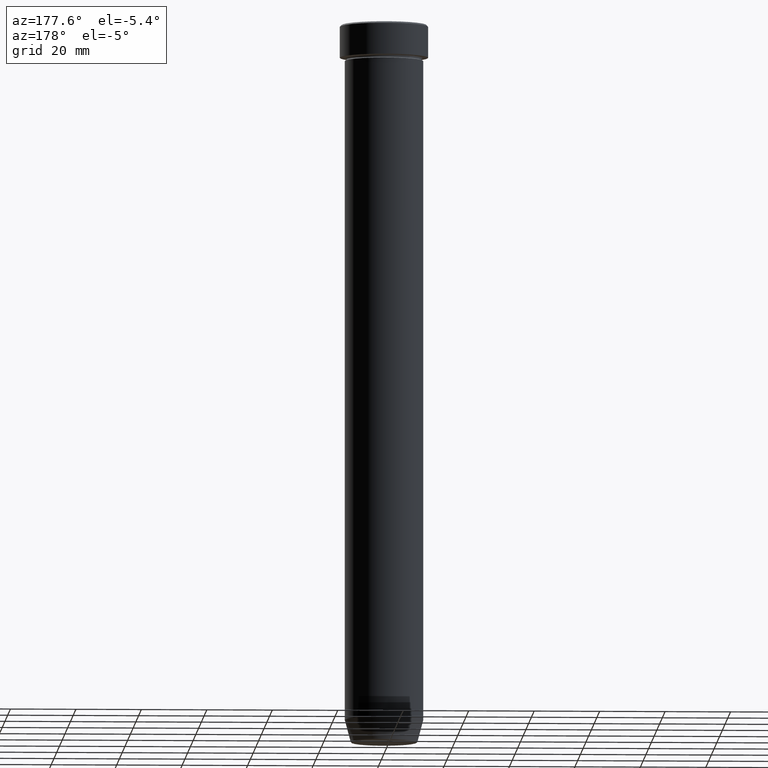
[diagram: clean part render]
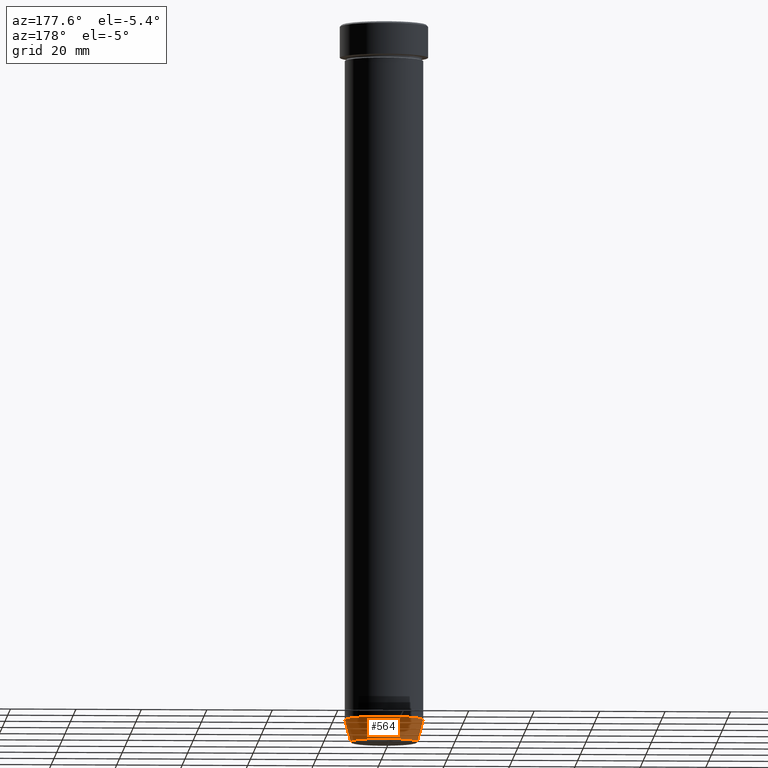
[diagram: same view with one face highlighted and labeled with its STEP entity id]
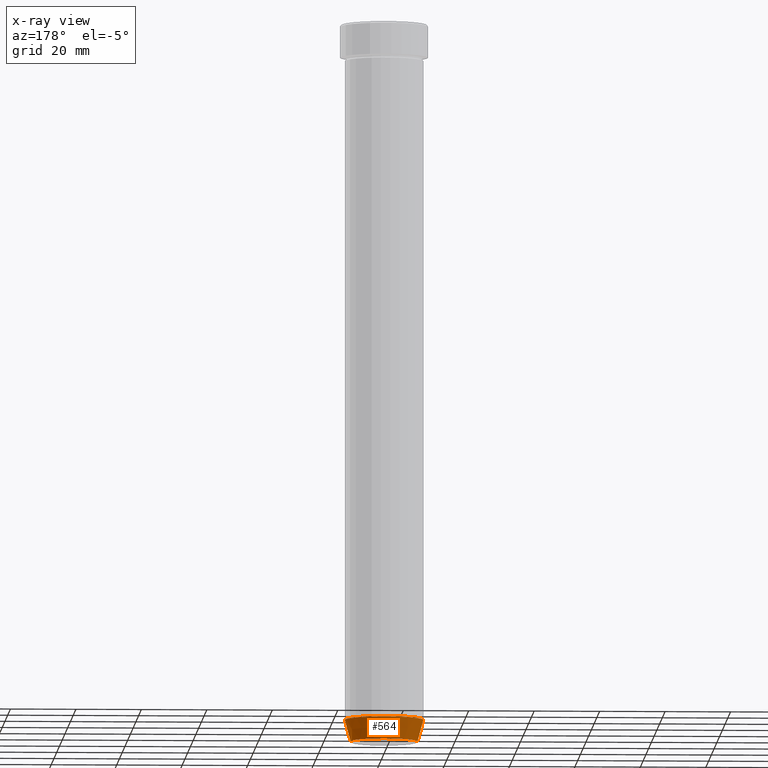
[diagram: x-ray of the same camera — body ghosted, the highlighted face saturated]
A machine part, auxiliary view. The second image highlights one B-rep face of the part: STEP entity #564.
The next image is the same camera in x-ray: the body ghosted, the highlighted face saturated — about 0% of this face is hidden behind the body in this view.
In plain terms, the highlighted conical surface has half-angle 15 deg.
Its self-contained STEP definition (entity closure, byte-faithful):
#10 = DIRECTION ( 'NONE',  ( -1.000000000000000000, 0.000000000000000000, 0.000000000000000000 ) ) ;
#21 = CONICAL_SURFACE ( 'NONE', #98, 10.12435565298213369, 0.2617993877991502405 ) ;
#25 = DIRECTION ( 'NONE',  ( 0.2588190451025214611, 0.000000000000000000, 0.9659258262890679791 ) ) ;
#27 = ORIENTED_EDGE ( 'NONE', *, *, #433, .T. ) ;
#34 = VERTEX_POINT ( 'NONE', #163 ) ;
#41 = ORIENTED_EDGE ( 'NONE', *, *, #459, .F. ) ;
#43 = EDGE_CURVE ( 'NONE', #499, #34, #130, .T. ) ;
#63 = CARTESIAN_POINT ( 'NONE',  ( -10.12435565298213369, 1.239875974385398152E-15, -220.0000000000000284 ) ) ;
#95 = AXIS2_PLACEMENT_3D ( 'NONE', #152, #147, #10 ) ;
#98 = AXIS2_PLACEMENT_3D ( 'NONE', #216, #170, #348 ) ;
#103 = VERTEX_POINT ( 'NONE', #230 ) ;
#121 = EDGE_LOOP ( 'NONE', ( #27, #175, #41, #577 ) ) ;
#130 = LINE ( 'NONE', #395, #504 ) ;
#147 = DIRECTION ( 'NONE',  ( -0.000000000000000000, -0.000000000000000000, 1.000000000000000000 ) ) ;
#152 = CARTESIAN_POINT ( 'NONE',  ( 0.000000000000000000, 0.000000000000000000, -219.6294095225512706 ) ) ;
#163 = CARTESIAN_POINT ( 'NONE',  ( 12.00000000000000000, 0.000000000000000000, -213.0000000000000284 ) ) ;
#170 = DIRECTION ( 'NONE',  ( -0.000000000000000000, -0.000000000000000000, 1.000000000000000000 ) ) ;
#175 = ORIENTED_EDGE ( 'NONE', *, *, #570, .T. ) ;
#187 = VERTEX_POINT ( 'NONE', #578 ) ;
#189 = CIRCLE ( 'NONE', #307, 12.00000000000000000 ) ;
#192 = VECTOR ( 'NONE', #574, 1000.000000000000114 ) ;
#216 = CARTESIAN_POINT ( 'NONE',  ( 0.000000000000000000, 0.000000000000000000, -220.0000000000000284 ) ) ;
#230 = CARTESIAN_POINT ( 'NONE',  ( -10.22365507213718416, 1.360806402472382153E-15, -219.6294095225512706 ) ) ;
#231 = CIRCLE ( 'NONE', #95, 10.22365507213718416 ) ;
#245 = CARTESIAN_POINT ( 'NONE',  ( 0.000000000000000000, 0.000000000000000000, -213.0000000000000284 ) ) ;
#294 = FACE_OUTER_BOUND ( 'NONE', #121, .T. ) ;
#307 = AXIS2_PLACEMENT_3D ( 'NONE', #245, #475, #327 ) ;
#327 = DIRECTION ( 'NONE',  ( 1.000000000000000000, 0.000000000000000000, 0.000000000000000000 ) ) ;
#348 = DIRECTION ( 'NONE',  ( 1.000000000000000000, 0.000000000000000000, 0.000000000000000000 ) ) ;
#395 = CARTESIAN_POINT ( 'NONE',  ( 10.12435565298213369, 0.000000000000000000, -220.0000000000000284 ) ) ;
#433 = EDGE_CURVE ( 'NONE', #499, #103, #231, .T. ) ;
#438 = LINE ( 'NONE', #63, #192 ) ;
#459 = EDGE_CURVE ( 'NONE', #34, #187, #189, .T. ) ;
#475 = DIRECTION ( 'NONE',  ( -0.000000000000000000, -0.000000000000000000, 1.000000000000000000 ) ) ;
#499 = VERTEX_POINT ( 'NONE', #563 ) ;
#504 = VECTOR ( 'NONE', #25, 1000.000000000000114 ) ;
#563 = CARTESIAN_POINT ( 'NONE',  ( 10.22365507213718416, 0.000000000000000000, -219.6294095225512706 ) ) ;
#564 = ADVANCED_FACE ( 'NONE', ( #294 ), #21, .T. ) ;
#570 = EDGE_CURVE ( 'NONE', #103, #187, #438, .T. ) ;
#574 = DIRECTION ( 'NONE',  ( -0.2588190451025214611, 3.169619151431774186E-17, 0.9659258262890679791 ) ) ;
#577 = ORIENTED_EDGE ( 'NONE', *, *, #43, .F. ) ;
#578 = CARTESIAN_POINT ( 'NONE',  ( -12.00000000000000000, 1.469576158976823947E-15, -213.0000000000000284 ) ) ;